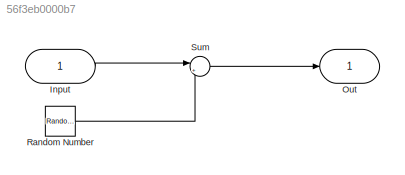
MODEL slx_56f3eb0000b7
KIND model
BLOCK [Inport] Input
  IconDisplay = Port number
BLOCK [Outport] Out
  IconDisplay = Port number
BLOCK [RandomNumber] Random Number
  SampleTime = 1/5000000
  Seed = 67
  Variance = 0.01
BLOCK [Sum] Sum
  IconShape = round
  InputSameDT = off
  Inputs = |++
  OutDataTypeStr = Inherit: Inherit via internal rule
  Ports = [2, 1]
  SaturateOnIntegerOverflow = off
LINE Input:1 -> Sum:1
LINE Random Number:1 -> Sum:2
LINE Sum:1 -> Out:1
